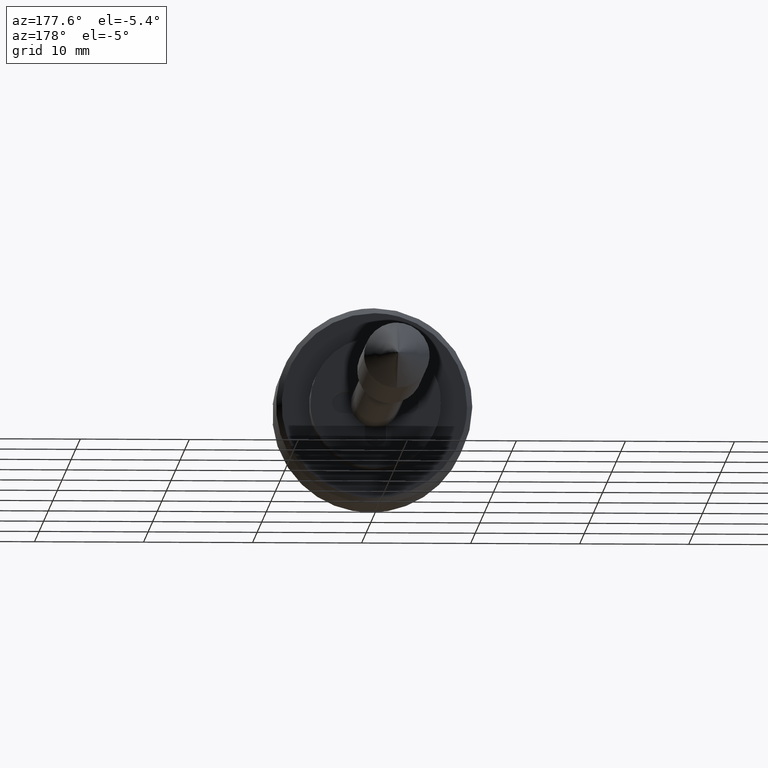
[diagram: clean part render]
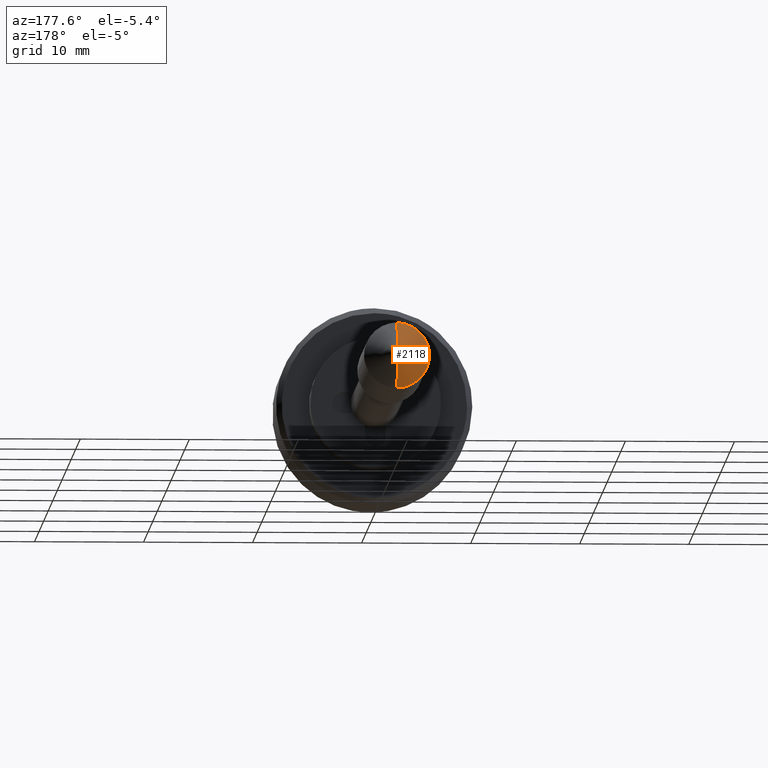
[diagram: same view with one face highlighted and labeled with its STEP entity id]
A machine part, auxiliary view. The second image highlights one B-rep face of the part: STEP entity #2118.
In plain terms, the highlighted face is a freeform B-spline surface patch.
Its self-contained STEP definition (entity closure, byte-faithful):
#1037=CARTESIAN_POINT('',(47.0,2.979028579080066,0.354102704062252));
#1038=VERTEX_POINT('',#1037);
#1039=CARTESIAN_POINT('',(47.000000000000043,0.0,-3.000000000000032));
#1040=VERTEX_POINT('',#1039);
#1041=CARTESIAN_POINT('',(47.0,2.979028579080067,0.354102704062252));
#1042=CARTESIAN_POINT('',(47.0,3.0,0.177672359048680));
#1043=CARTESIAN_POINT('',(47.0,3.0,0.0));
#1044=CARTESIAN_POINT('',(47.000000000000007,3.0,-3.0));
#1045=CARTESIAN_POINT('',(47.0,0.0,-3.0));
#1053=(BOUNDED_CURVE()B_SPLINE_CURVE(2,(#1041,#1042,#1043,#1044,#1045),.UNSPECIFIED.,.F.,.U.)B_SPLINE_CURVE_WITH_KNOTS((3,2,3),(0.459124947010417,0.500000000000000,1.0),.UNSPECIFIED.)CURVE()GEOMETRIC_REPRESENTATION_ITEM()RATIONAL_B_SPLINE_CURVE((0.956026754167431,0.976055948321421,1.0,0.707106781186548,1.0))REPRESENTATION_ITEM(''));
#1054=EDGE_CURVE('',#1038,#1040,#1053,.T.);
#1136=CARTESIAN_POINT('',(47.000000000000043,0.0,3.000000000000032));
#1137=VERTEX_POINT('',#1136);
#1138=CARTESIAN_POINT('',(47.0,0.0,3.0));
#1139=CARTESIAN_POINT('',(47.000000000000007,2.664523577688410,3.000000000000000));
#1140=CARTESIAN_POINT('',(47.000000000000007,2.979028579080066,0.354102704062252));
#1148=(BOUNDED_CURVE()B_SPLINE_CURVE(2,(#1138,#1139,#1140),.UNSPECIFIED.,.F.,.U.)B_SPLINE_CURVE_WITH_KNOTS((3,3),(0.0,0.459124947010417),.UNSPECIFIED.)CURVE()GEOMETRIC_REPRESENTATION_ITEM()RATIONAL_B_SPLINE_CURVE((1.0,0.731050832865127,0.956026754167431))REPRESENTATION_ITEM(''));
#1149=EDGE_CURVE('',#1137,#1038,#1148,.T.);
#1989=CARTESIAN_POINT('',(50.0,0.0,0.0));
#1990=VERTEX_POINT('',#1989);
#1991=CARTESIAN_POINT('',(50.0,0.0,0.0));
#1992=CARTESIAN_POINT('',(47.000000000000043,0.0,3.000000000000032));
#1993=QUASI_UNIFORM_CURVE('',1,(#1991,#1992),.UNSPECIFIED.,.F.,.U.);
#1994=EDGE_CURVE('',#1990,#1137,#1993,.T.);
#1998=CARTESIAN_POINT('',(50.0,0.0,0.0));
#1999=CARTESIAN_POINT('',(47.000000000000043,0.0,-3.000000000000032));
#2000=QUASI_UNIFORM_CURVE('',1,(#1998,#1999),.UNSPECIFIED.,.F.,.U.);
#2001=EDGE_CURVE('',#1990,#1040,#2000,.T.);
#2094=CARTESIAN_POINT('',(50.0,0.0,0.0));
#2095=CARTESIAN_POINT('',(46.923124999999999,-0.080543197824797,-3.075820631784366));
#2096=CARTESIAN_POINT('',(49.999999999999993,0.0,0.0));
#2097=CARTESIAN_POINT('',(46.923124999999992,3.160695452878700,-3.160695452878710));
#2098=CARTESIAN_POINT('',(50.0,0.0,0.0));
#2099=CARTESIAN_POINT('',(46.923124999999999,3.075820631784366,0.080543197824788));
#2100=CARTESIAN_POINT('',(49.999999999999993,0.0,0.0));
#2101=CARTESIAN_POINT('',(46.923124999999992,2.990945810690032,3.321781848528285));
#2102=CARTESIAN_POINT('',(50.0,0.0,0.0));
#2103=CARTESIAN_POINT('',(46.923124999999999,-0.241408830167624,3.067390021230316));
#2111=(BOUNDED_SURFACE()B_SPLINE_SURFACE(1,2,((#2094,#2096,#2098,#2100,#2102),(#2095,#2097,#2099,#2101,#2103)),.UNSPECIFIED.,.F.,.F.,.U.)B_SPLINE_SURFACE_WITH_KNOTS((2,2),(3,2,3),(0.0,1.0),(0.0,1.0,2.0),.UNSPECIFIED.)GEOMETRIC_REPRESENTATION_ITEM()RATIONAL_B_SPLINE_SURFACE(((1.0,0.688354575693754,1.0,0.688354575693754,1.0),(1.0,0.688354575693754,1.0,0.688354575693754,1.0)))REPRESENTATION_ITEM('')SURFACE());
#2112=ORIENTED_EDGE('',*,*,#2001,.T.);
#2113=ORIENTED_EDGE('',*,*,#1054,.F.);
#2114=ORIENTED_EDGE('',*,*,#1149,.F.);
#2115=ORIENTED_EDGE('',*,*,#1994,.F.);
#2116=EDGE_LOOP('',(#2112,#2113,#2114,#2115));
#2117=FACE_OUTER_BOUND('',#2116,.T.);
#2118=ADVANCED_FACE('',(#2117),#2111,.T.);